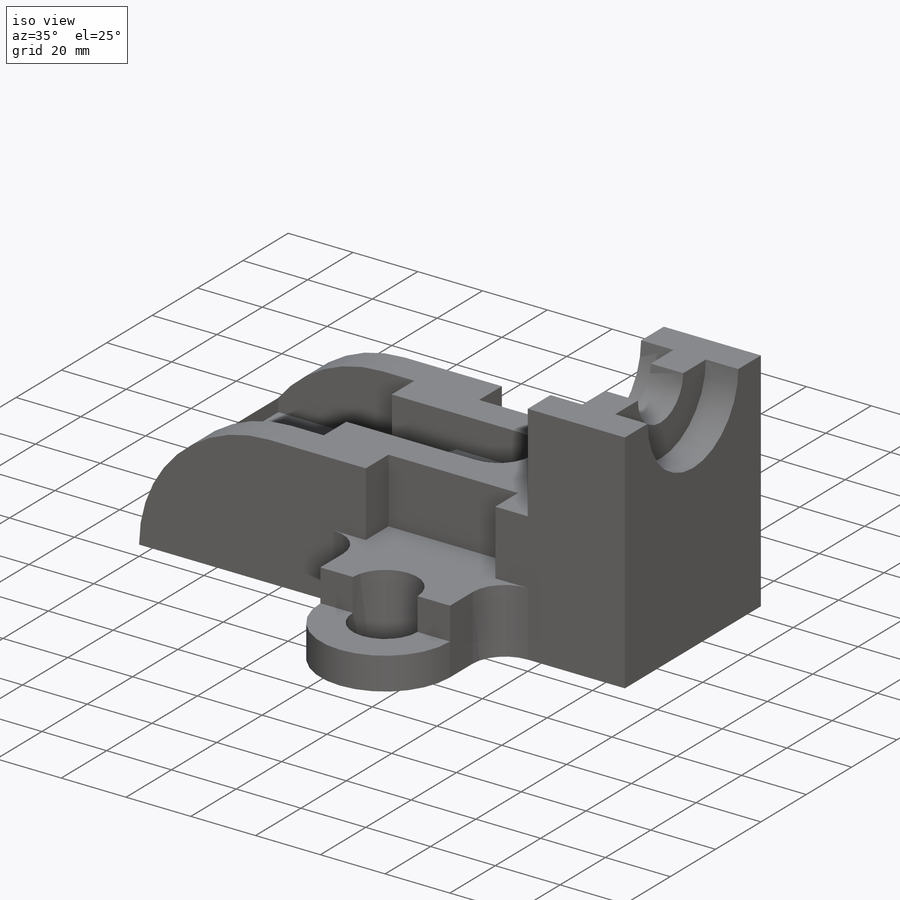
[diagram: iso view]
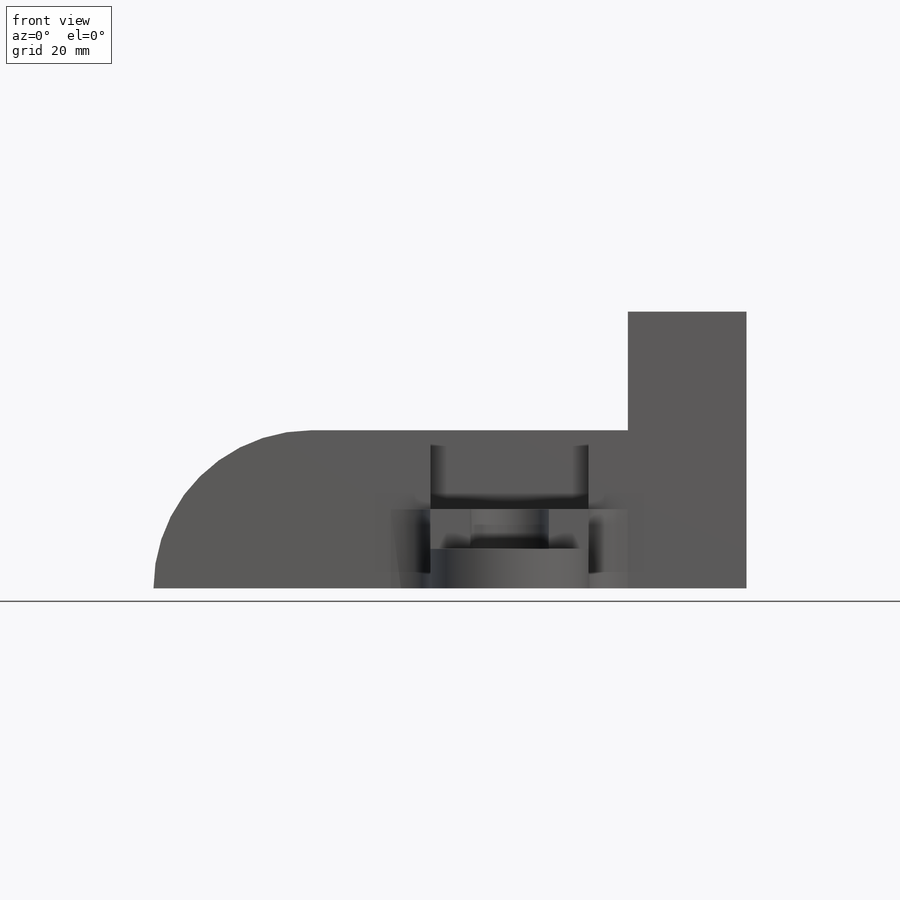
[diagram: front view]
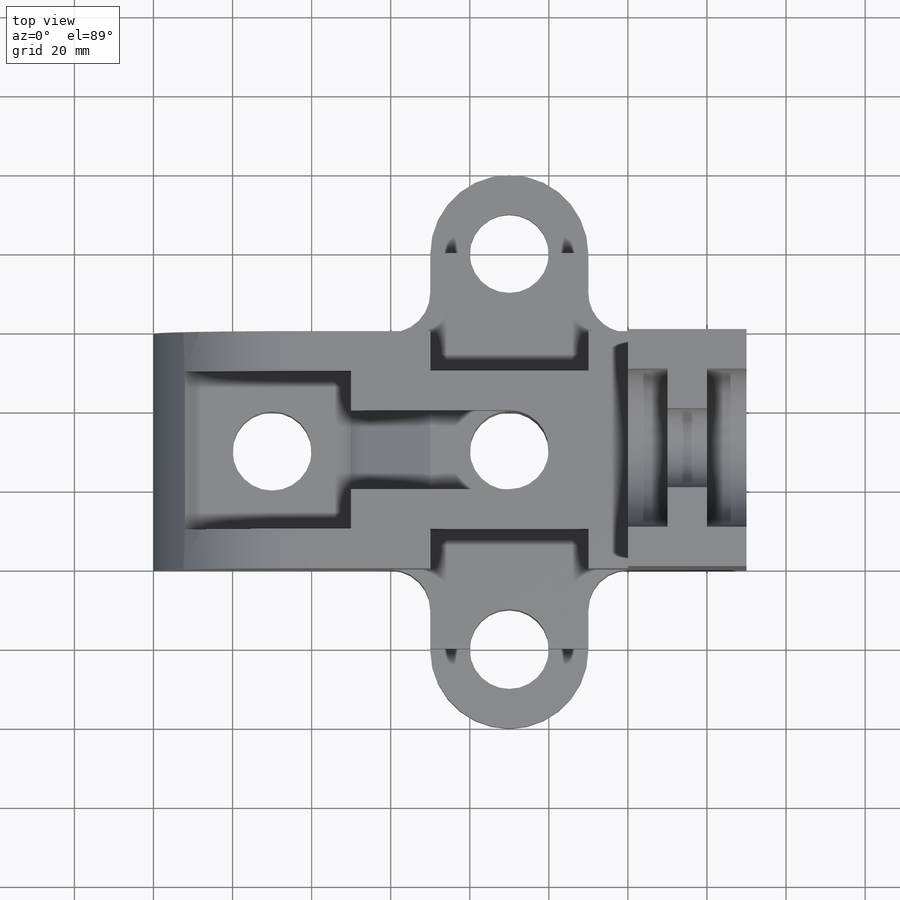
[diagram: top view]
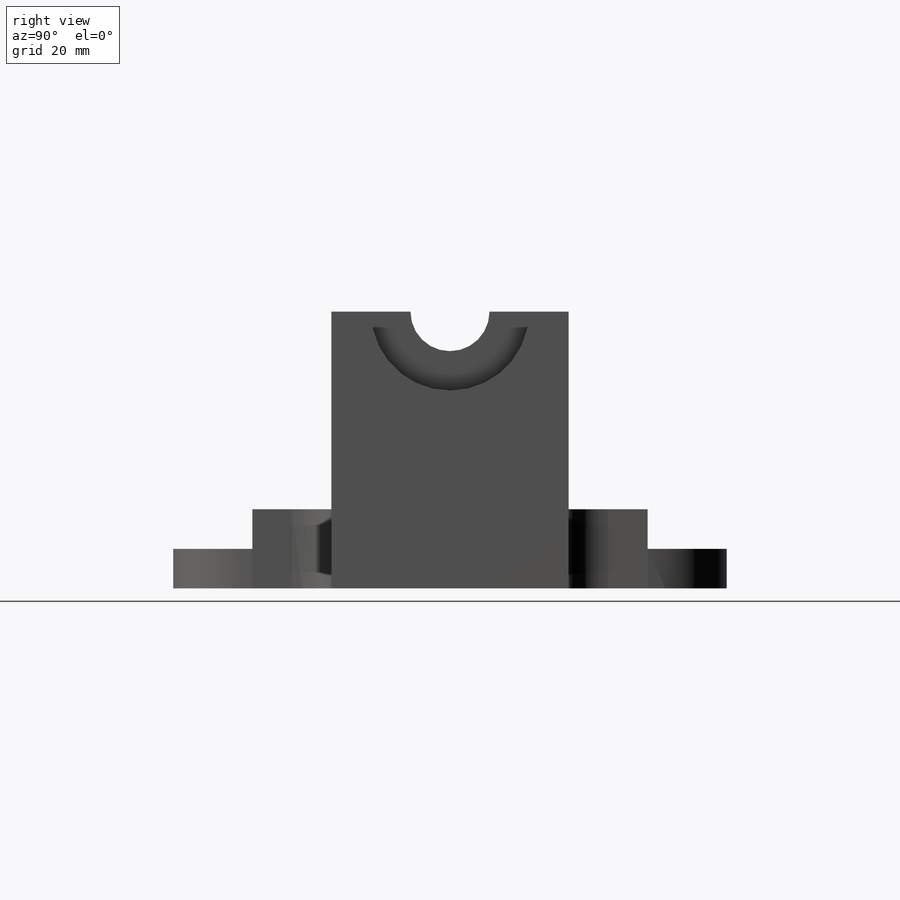
[diagram: right view]
SOLIDWORKS PART (.sldprt)
format: sldprt  version: not decoded by parser v0  size: 422,912 bytes
history: native  units: mm
features: sketch x16, cut_extrude x13, extrude x3, plane x2, material x1 (+13 scaffold rows collapsed)
feature tree (48):
  scaffold x13  (default folders/planes/origin — collapsed)
  material  "Material <not specified>"
  sketch  "Sketch2"  dims[c1.D1=40.0mm c1.D7=40.0mm c1.D2=80.0mm c1.D3=30.0mm c1.D4=30.0mm c1.D5=70.0mm c1.D6=150.0mm c2.D7=80.0mm]
  extrude  "Boss-Extrude1"  Depth=60mm
  sketch  "Sketch4"  dims[D1=10.0mm D2=20.0mm D3=10.0mm]
  cut_extrude  "Cut-Extrude1"  Depth=10mm
  sketch  "Sketch5"  dims[D2=10.0mm D3=20.0mm D1=10.0mm]
  cut_extrude  "Cut-Extrude2"  Depth=10mm
  sketch  "Sketch6"
  cut_extrude  "Cut-Extrude3"  Depth=30mm
  sketch  "Sketch7"  dims[D1=20.0mm D2=30.0mm D3=90.0mm]
  cut_extrude  "Cut-Extrude5"  Depth=75mm
  sketch  "Sketch8"  dims[D1=20.0mm D2=30.0mm D3=30.0mm]
  cut_extrude  "Cut-Extrude6"  Depth=75mm
  plane  "Plane1"  Offset=20mm
  sketch  "Sketch9"  dims[D1=40.0mm D2=10.0mm D3=10.0mm D4=42.0mm]
  cut_extrude  "Cut-Extrude8"  Depth=65mm
  sketch  "Sketch10"  dims[D1=20.0mm D2=10.0mm D3=40.0mm D4=40.0mm]
  cut_extrude  "Cut-Extrude9"  Depth=10mm
  plane  "Plane2"  Offset=20mm
  sketch  "Sketch11"  dims[D1=10.0mm D2=20.0mm D3=0.0mm]
  cut_extrude  "Cut-Extrude10"  Depth=20mm
  sketch  "Sketch12"  dims[D1=10.0mm D2=10.0mm D3=10.0mm D4=10.0mm D5=40.0mm D6=40.0mm]
  cut_extrude  "Cut-Extrude11"  Depth=20mm
  sketch  "Sketch13"  dims[c1.D1=10.0mm c1.D2=10.0mm c1.D6=~10.226892mm c1.D8=20.0mm c1.D3=10.0mm c1.D4=10.0mm c1.D5=0.0mm c2.D6=60.0mm c2.D7=30.0mm c2.D9=10.0mm c2.D5=10.0mm]
  extrude  "Boss-Extrude2"  Depth=20mm
  sketch  "Sketch14"  dims[D1=20.0mm D2=20.0mm D3=20.0mm]
  cut_extrude  "Cut-Extrude14"  Depth=20mm
  sketch  "Sketch15"
  cut_extrude  "Cut-Extrude15"  Depth=10mm
  sketch  "Sketch17"  dims[D3=20.0mm D4=10.0mm D5=10.0mm D1=30.0mm D2=60.0mm D6=10.0mm D7=10.0mm D8=10.0mm D9=10.0mm]
  extrude  "Boss-Extrude3"  Depth=20mm
  sketch  "Sketch18"  dims[D1=20.0mm D2=20.0mm D3=20.0mm]
  cut_extrude  "Cut-Extrude16"  Depth=20mm
  sketch  "Sketch19"  dims[D1=10.0mm D2=10.0mm]
  cut_extrude  "Cut-Extrude17"  Depth=10mm
decode coverage: 30 of 32 modeling features carry decoded parameters
note: ~ marks probable driven/reference dimensions
note: suppression state not decoded; provenance and decode notes live in map.json
